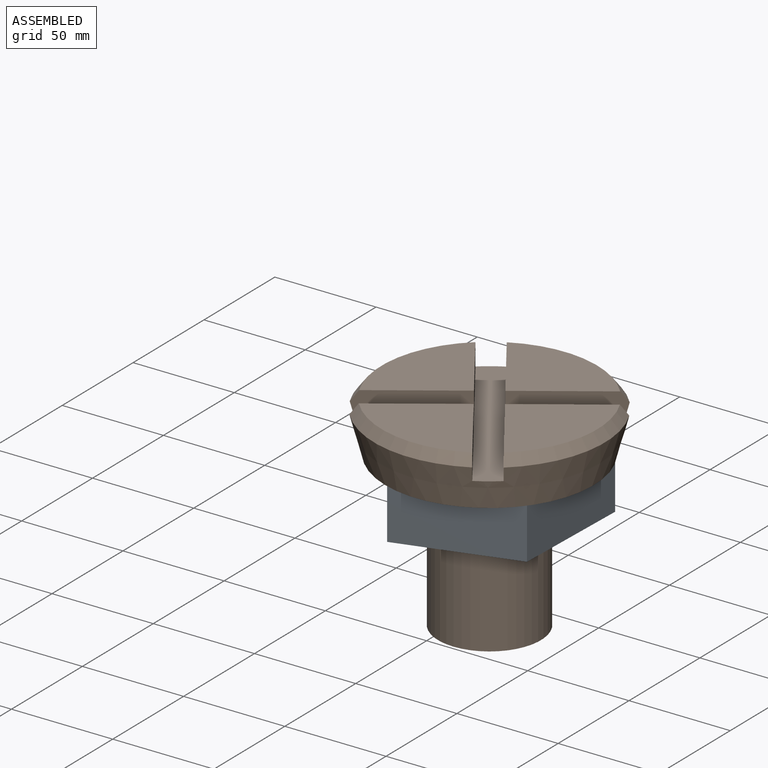
[diagram: assembled view]
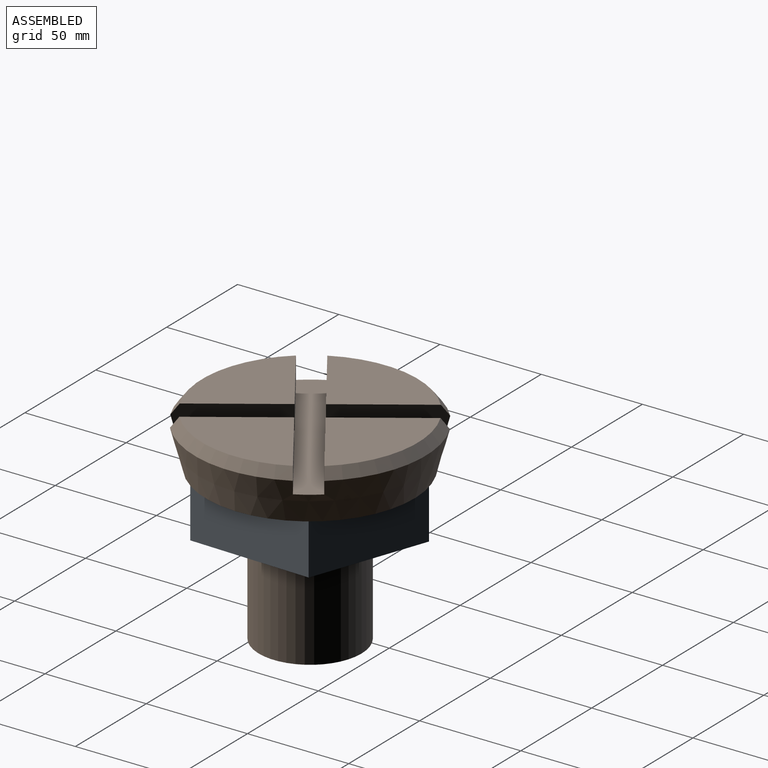
[diagram: assembled view, second angle]
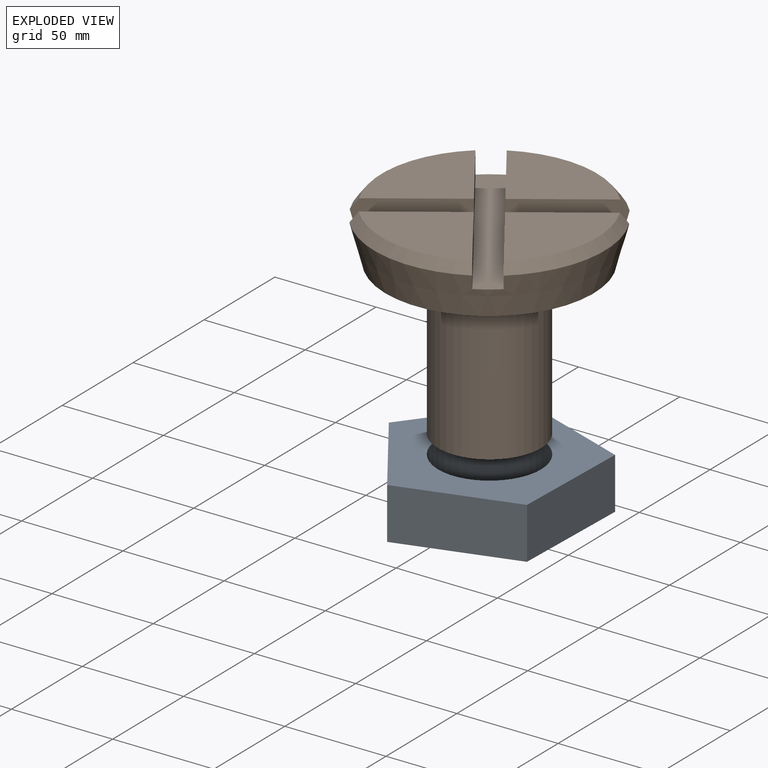
[diagram: exploded view]
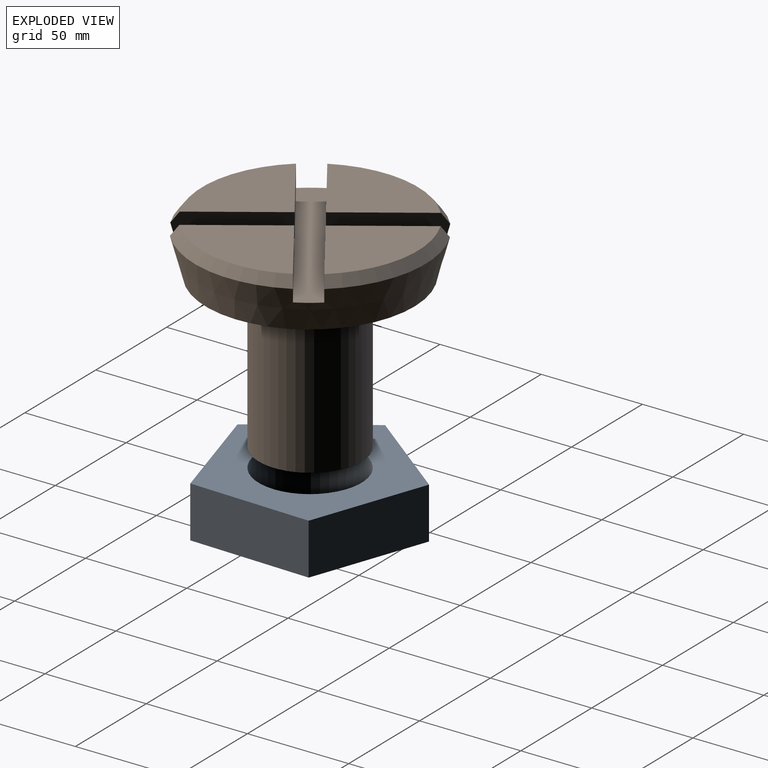
[diagram: exploded view, second angle]
ASSEMBLY  parts=2 mates=2
PART A: 8 faces, bbox 91.9x96.6x25.4 mm
  f0: plane 56.8x25.4mm, normal (-0.31,-0.95,0), area 1516.9mm2, adj f1,f4,f6,f7
  f1: plane 48.31x35.1mm, normal (0.81,-0.59,0), area 1516.9mm2, adj f0,f2,f6,f7
  f2: plane 48.31x35.1mm, normal (0.81,0.59,0), area 1516.9mm2, adj f1,f3,f6,f7
  f3: plane 56.8x25.4mm, normal (-0.31,0.95,0), area 1516.9mm2, adj f2,f4,f6,f7
  f4: plane 59.72x25.4mm, normal (-1,0,0), area 1516.9mm2, adj f0,f3,f6,f7
  f5: cylinder r=25.4mm len=50.8mm, axis (0,0,-1), area 4053.7mm2, adj f6,f7
  f6: plane 96.63x91.9mm, normal (0,0,1), area 4109mm2, adj f0,f1,f2,f3,f4,f5
  f7: plane 96.63x91.9mm, normal (0,0,-1), area 4109mm2, adj f0,f1,f2,f3,f4,f5
PART B: 21 faces, bbox 114x114x101.6 mm
  f0: cone r=51.51mm half-angle=15deg, axis (0,0,1), area 6869.9mm2, adj f4,f5,f6,f7,f10,f12,f13,f14
  f1: plane 46.51x46.51mm, normal (0,0,1), area 1591.9mm2, adj f7,f14,f15
  f2: plane 46.51x46.51mm, normal (0,0,1), area 1591.9mm2, adj f5,f16,f17
  f3: plane 46.51x46.51mm, normal (0,0,1), area 1591.9mm2, adj f6,f18,f19
  f4: cone r=53.24mm half-angle=37.5deg, axis (0,0,-1), area 456.7mm2, adj f0,f11,f13,f20
  f5: cone r=53.24mm half-angle=37.5deg, axis (0,0,-1), area 456.7mm2, adj f0,f2,f16,f17
  f6: cone r=53.24mm half-angle=37.5deg, axis (0,0,-1), area 456.7mm2, adj f0,f3,f18,f19
  f7: cone r=53.24mm half-angle=37.5deg, axis (0,0,-1), area 456.7mm2, adj f0,f1,f14,f15
  f8: plane 50.8x50.8mm, normal (0,0,-1), area 2026.8mm2, adj f9
  f9: cylinder r=25.4mm len=76.2mm, axis (0,0,1), area 12161mm2, adj f8,f10
  f10: plane 103.02x103.02mm, normal (0,0,-1), area 6309.4mm2, adj f0,f9
  f11: plane 46.51x46.51mm, normal (0,0,1), area 1591.9mm2, adj f4,f13,f20
  f12: plane 110.32x110.32mm, normal (0,0,1), area 2634.6mm2, adj f0,f13,f14,f15,f16,f17,f18,f19
  f13: plane 50.31x11.81mm, normal (1,0,0), area 577.3mm2, adj f0,f4,f11,f12,f20
  f14: plane 50.31x11.81mm, normal (-1,0,0), area 577.3mm2, adj f0,f1,f7,f12,f15
  f15: plane 50.31x11.81mm, normal (0,1,0), area 577.3mm2, adj f0,f1,f7,f12,f14
  f16: plane 50.31x11.81mm, normal (0,-1,0), area 577.3mm2, adj f0,f2,f5,f12,f17
  f17: plane 50.31x11.81mm, normal (-1,0,0), area 577.3mm2, adj f0,f2,f5,f12,f16
  f18: plane 50.31x11.81mm, normal (1,0,0), area 577.3mm2, adj f0,f3,f6,f12,f19
  f19: plane 50.31x11.81mm, normal (0,-1,0), area 577.3mm2, adj f0,f3,f6,f12,f18
  f20: plane 50.31x11.81mm, normal (0,1,0), area 577.3mm2, adj f0,f4,f11,f12,f13
PLACE A rot(axis=(0.96,0.3,0),180deg) t=(15.74,-28.04,25.2)mm
PLACE B rot(axis=(0,0,1),124.3deg) t=(15.74,-28.04,-0.2)mm fixed
MATE cylindrical A.f5 <-> B.f0  axis (0,0,-1) through (15.74,-28.04,-0.2)mm
MATE fastened B.f0 <-> A.f5  axis (0,0,-1) through (15.74,-28.04,25.2)mm
